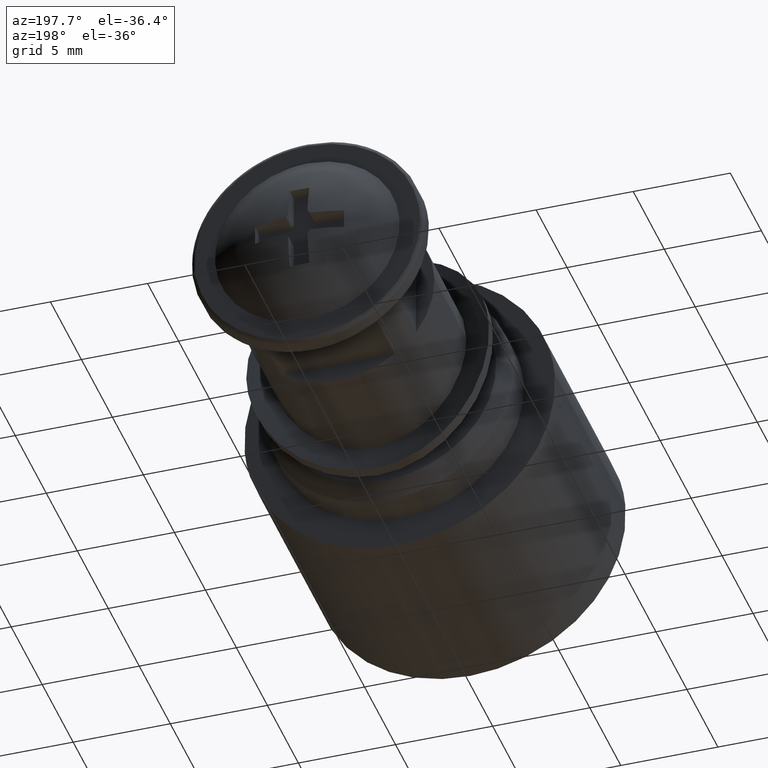
[diagram: clean part render]
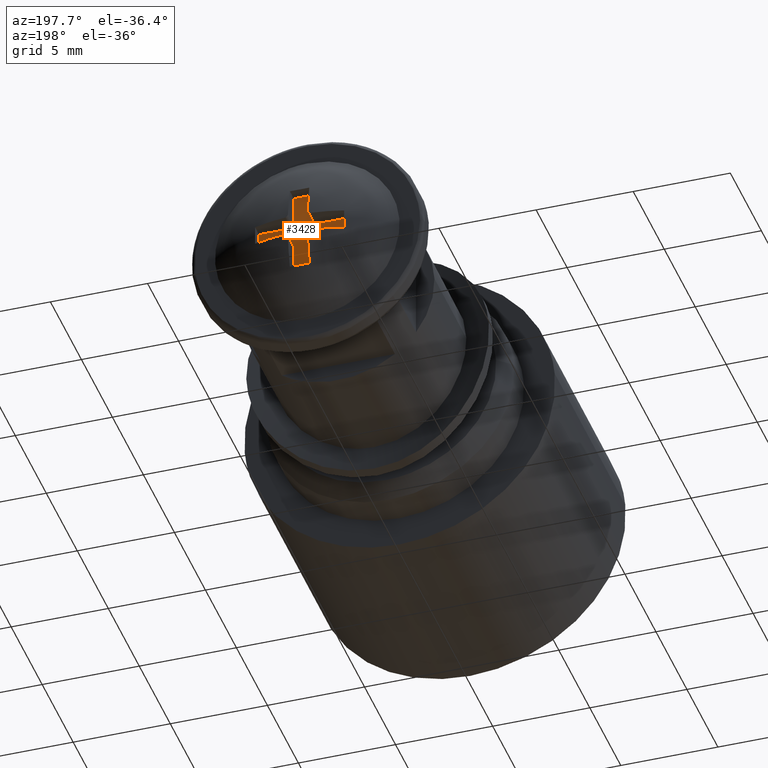
[diagram: same view with one face highlighted and labeled with its STEP entity id]
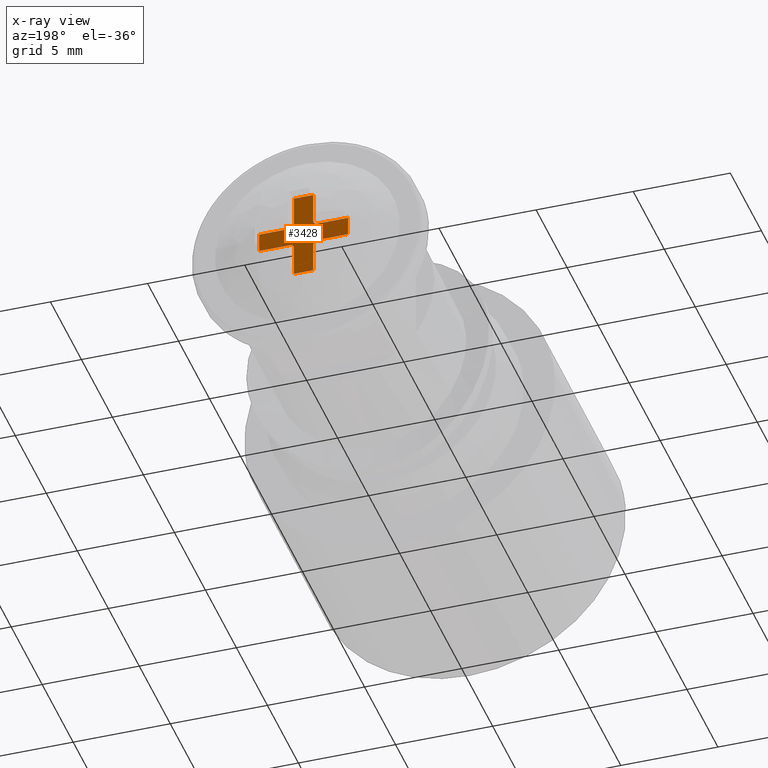
[diagram: x-ray of the same camera — body ghosted, the highlighted face saturated]
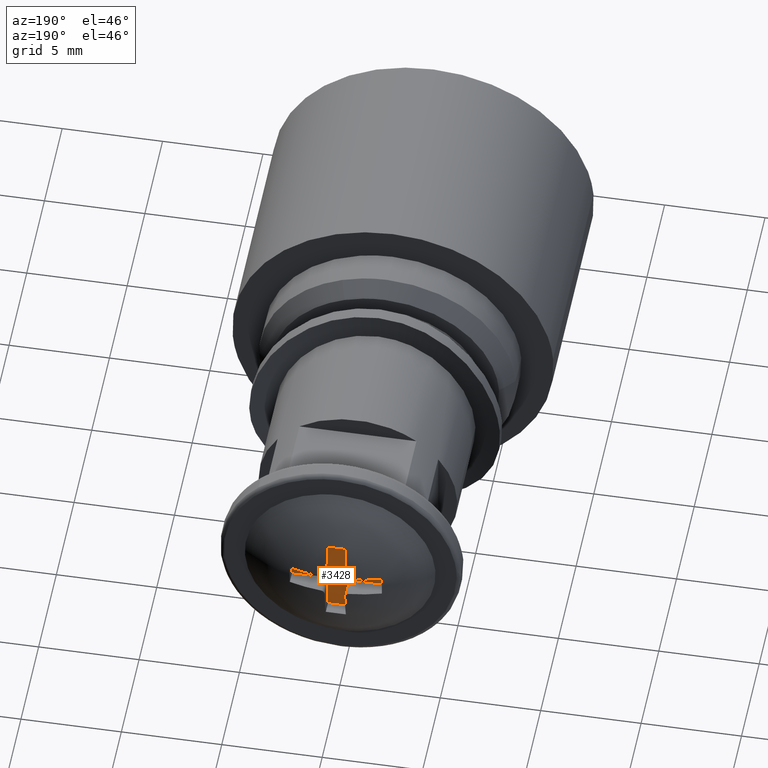
[diagram: same view with one face highlighted and labeled with its STEP entity id]
A machine part, auxiliary view. The second image highlights one B-rep face of the part: STEP entity #3428.
The next image is the same camera in x-ray: the body ghosted, the highlighted face saturated — about 0% of this face is hidden behind the body in this view.
A second angle (auxiliary view) of the same face is appended — the face is thin or edge-on in the first view.
In plain terms, the highlighted face is a freeform B-spline surface patch.
Its self-contained STEP definition (entity closure, byte-faithful):
#3241=CARTESIAN_POINT('',(-2.529770197605020,15.500000974442800,2.529770197604838));
#3242=CARTESIAN_POINT('',(2.529770238732124,15.500000974442800,2.529770197604838));
#3243=CARTESIAN_POINT('',(-2.529770197605020,15.500000974442800,-2.529770238732283));
#3244=CARTESIAN_POINT('',(2.529770238732124,15.500000974442800,-2.529770238732283));
#3245=B_SPLINE_SURFACE_WITH_KNOTS('',1,1,((#3241,#3243),(#3242,#3244)),.UNSPECIFIED.,.F.,.F.,.U.,(2,2),(2,2),(0.0,5.059540436337144),(0.0,5.059540436337121),.UNSPECIFIED.);
#3246=CARTESIAN_POINT('',(0.500000023748697,15.500000974442800,0.700000033248202));
#3247=VERTEX_POINT('',#3246);
#3248=CARTESIAN_POINT('',(0.500000023748707,15.500000974442800,2.291615465318225));
#3249=VERTEX_POINT('',#3248);
#3250=CARTESIAN_POINT('',(0.500000023748697,15.500000974442800,0.700000033248202));
#3251=CARTESIAN_POINT('',(0.500000023748707,15.500000974442800,2.291615465318225));
#3252=QUASI_UNIFORM_CURVE('',1,(#3250,#3251),.UNSPECIFIED.,.F.,.U.);
#3253=EDGE_CURVE('',#3247,#3249,#3252,.T.);
#3254=ORIENTED_EDGE('',*,*,#3253,.F.);
#3255=CARTESIAN_POINT('',(0.700000033248188,15.500000974442800,0.500000023748711));
#3256=VERTEX_POINT('',#3255);
#3257=CARTESIAN_POINT('',(0.500000023748697,15.500000974442800,0.700000033248202));
#3258=CARTESIAN_POINT('',(0.500000023748697,15.500000974442800,0.500000023748711));
#3259=CARTESIAN_POINT('',(0.700000033248188,15.500000974442800,0.500000023748711));
#3267=(BOUNDED_CURVE()B_SPLINE_CURVE(2,(#3257,#3258,#3259),.UNSPECIFIED.,.F.,.U.)CURVE()GEOMETRIC_REPRESENTATION_ITEM()QUASI_UNIFORM_CURVE()RATIONAL_B_SPLINE_CURVE((1.0,0.707106781186548,1.0))REPRESENTATION_ITEM(''));
#3268=EDGE_CURVE('',#3247,#3256,#3267,.T.);
#3269=ORIENTED_EDGE('',*,*,#3268,.T.);
#3270=CARTESIAN_POINT('',(2.291615465318155,15.500000974442800,0.500000023748699));
#3271=VERTEX_POINT('',#3270);
#3272=CARTESIAN_POINT('',(2.291615465318155,15.500000974442800,0.500000023748699));
#3273=CARTESIAN_POINT('',(0.700000033248188,15.500000974442800,0.500000023748711));
#3274=QUASI_UNIFORM_CURVE('',1,(#3272,#3273),.UNSPECIFIED.,.F.,.U.);
#3275=EDGE_CURVE('',#3271,#3256,#3274,.T.);
#3276=ORIENTED_EDGE('',*,*,#3275,.F.);
#3277=CARTESIAN_POINT('',(2.291615465318700,15.500000974442800,-0.500000023748740));
#3278=VERTEX_POINT('',#3277);
#3279=CARTESIAN_POINT('',(2.291615465318700,15.500000974442800,-0.500000023748740));
#3280=CARTESIAN_POINT('',(2.308389470170704,15.500000974442804,-6.179952E-015));
#3281=CARTESIAN_POINT('',(2.291615465318154,15.500000974442800,0.500000023748696));
#3289=(BOUNDED_CURVE()B_SPLINE_CURVE(2,(#3279,#3280,#3281),.UNSPECIFIED.,.F.,.U.)CURVE()GEOMETRIC_REPRESENTATION_ITEM()QUASI_UNIFORM_CURVE()RATIONAL_B_SPLINE_CURVE((1.0,0.999437740135854,1.0))REPRESENTATION_ITEM(''));
#3290=EDGE_CURVE('',#3278,#3271,#3289,.T.);
#3291=ORIENTED_EDGE('',*,*,#3290,.F.);
#3292=CARTESIAN_POINT('',(0.700000033248188,15.500000974442800,-0.500000023748740));
#3293=VERTEX_POINT('',#3292);
#3294=CARTESIAN_POINT('',(0.700000033248188,15.500000974442800,-0.500000023748740));
#3295=CARTESIAN_POINT('',(2.291615465318700,15.500000974442800,-0.500000023748740));
#3296=QUASI_UNIFORM_CURVE('',1,(#3294,#3295),.UNSPECIFIED.,.F.,.U.);
#3297=EDGE_CURVE('',#3293,#3278,#3296,.T.);
#3298=ORIENTED_EDGE('',*,*,#3297,.F.);
#3299=CARTESIAN_POINT('',(0.500000023748697,15.500000974442800,-0.700000033248273));
#3300=VERTEX_POINT('',#3299);
#3301=CARTESIAN_POINT('',(0.700000033248188,15.500000974442800,-0.500000023748740));
#3302=CARTESIAN_POINT('',(0.617157316838739,15.500000974442795,-0.500000023748740));
#3303=CARTESIAN_POINT('',(0.558578670293709,15.500000974442800,-0.558578670293782));
#3304=CARTESIAN_POINT('',(0.500000023748680,15.500000974442795,-0.617157316838824));
#3305=CARTESIAN_POINT('',(0.500000023748697,15.500000974442800,-0.700000033248273));
#3313=(BOUNDED_CURVE()B_SPLINE_CURVE(2,(#3301,#3302,#3303,#3304,#3305),.UNSPECIFIED.,.F.,.U.)B_SPLINE_CURVE_WITH_KNOTS((3,2,3),(0.0,0.500000000000000,1.0),.UNSPECIFIED.)CURVE()GEOMETRIC_REPRESENTATION_ITEM()RATIONAL_B_SPLINE_CURVE((1.0,0.923879532511266,1.0,0.923879532511266,1.0))REPRESENTATION_ITEM(''));
#3314=EDGE_CURVE('',#3293,#3300,#3313,.T.);
#3315=ORIENTED_EDGE('',*,*,#3314,.T.);
#3316=CARTESIAN_POINT('',(0.500000023748697,15.500000974442800,-2.291615465318336));
#3317=VERTEX_POINT('',#3316);
#3318=CARTESIAN_POINT('',(0.500000023748697,15.500000974442800,-2.291615465318336));
#3319=CARTESIAN_POINT('',(0.500000023748697,15.500000974442800,-0.700000033248273));
#3320=QUASI_UNIFORM_CURVE('',1,(#3318,#3319),.UNSPECIFIED.,.F.,.U.);
#3321=EDGE_CURVE('',#3317,#3300,#3320,.T.);
#3322=ORIENTED_EDGE('',*,*,#3321,.F.);
#3323=CARTESIAN_POINT('',(-0.500000023748811,15.500000974442800,-2.291615465318800));
#3324=VERTEX_POINT('',#3323);
#3325=CARTESIAN_POINT('',(-0.500000023748811,15.500000974442800,-2.291615465318800));
#3326=CARTESIAN_POINT('',(-5.139118E-014,15.500000974442800,-2.308389470170885));
#3327=CARTESIAN_POINT('',(0.500000023748690,15.500000974442800,-2.291615465318335));
#3335=(BOUNDED_CURVE()B_SPLINE_CURVE(2,(#3325,#3326,#3327),.UNSPECIFIED.,.F.,.U.)CURVE()GEOMETRIC_REPRESENTATION_ITEM()QUASI_UNIFORM_CURVE()RATIONAL_B_SPLINE_CURVE((1.0,0.999437740135854,1.0))REPRESENTATION_ITEM(''));
#3336=EDGE_CURVE('',#3324,#3317,#3335,.T.);
#3337=ORIENTED_EDGE('',*,*,#3336,.F.);
#3338=CARTESIAN_POINT('',(-0.500000023748812,15.500000974442800,-0.700000033248230));
#3339=VERTEX_POINT('',#3338);
#3340=CARTESIAN_POINT('',(-0.500000023748812,15.500000974442800,-0.700000033248230));
#3341=CARTESIAN_POINT('',(-0.500000023748811,15.500000974442800,-2.291615465318800));
#3342=QUASI_UNIFORM_CURVE('',1,(#3340,#3341),.UNSPECIFIED.,.F.,.U.);
#3343=EDGE_CURVE('',#3339,#3324,#3342,.T.);
#3344=ORIENTED_EDGE('',*,*,#3343,.F.);
#3345=CARTESIAN_POINT('',(-0.700000033248301,15.500000974442800,-0.500000023748740));
#3346=VERTEX_POINT('',#3345);
#3347=CARTESIAN_POINT('',(-0.500000023748811,15.500000974442800,-0.700000033248230));
#3348=CARTESIAN_POINT('',(-0.500000023748811,15.500000974442804,-0.500000023748741));
#3349=CARTESIAN_POINT('',(-0.700000033248301,15.500000974442800,-0.500000023748741));
#3357=(BOUNDED_CURVE()B_SPLINE_CURVE(2,(#3347,#3348,#3349),.UNSPECIFIED.,.F.,.U.)CURVE()GEOMETRIC_REPRESENTATION_ITEM()QUASI_UNIFORM_CURVE()RATIONAL_B_SPLINE_CURVE((1.0,0.707106781186547,1.0))REPRESENTATION_ITEM(''));
#3358=EDGE_CURVE('',#3339,#3346,#3357,.T.);
#3359=ORIENTED_EDGE('',*,*,#3358,.T.);
#3360=CARTESIAN_POINT('',(-2.291615465318270,15.500000974442800,-0.500000023748651));
#3361=VERTEX_POINT('',#3360);
#3362=CARTESIAN_POINT('',(-2.291615465318270,15.500000974442800,-0.500000023748651));
#3363=CARTESIAN_POINT('',(-0.700000033248301,15.500000974442800,-0.500000023748740));
#3364=QUASI_UNIFORM_CURVE('',1,(#3362,#3363),.UNSPECIFIED.,.F.,.U.);
#3365=EDGE_CURVE('',#3361,#3346,#3364,.T.);
#3366=ORIENTED_EDGE('',*,*,#3365,.F.);
#3367=CARTESIAN_POINT('',(-2.291615465318815,15.500000974442800,0.500000023748711));
#3368=VERTEX_POINT('',#3367);
#3369=CARTESIAN_POINT('',(-2.291615465318815,15.500000974442800,0.500000023748711));
#3370=CARTESIAN_POINT('',(-2.308389470170803,15.500000974442797,2.818926E-014));
#3371=CARTESIAN_POINT('',(-2.291615465318255,15.500000974442800,-0.500000023748658));
#3379=(BOUNDED_CURVE()B_SPLINE_CURVE(2,(#3369,#3370,#3371),.UNSPECIFIED.,.F.,.U.)CURVE()GEOMETRIC_REPRESENTATION_ITEM()QUASI_UNIFORM_CURVE()RATIONAL_B_SPLINE_CURVE((1.0,0.999437740135854,1.0))REPRESENTATION_ITEM(''));
#3380=EDGE_CURVE('',#3368,#3361,#3379,.T.);
#3381=ORIENTED_EDGE('',*,*,#3380,.F.);
#3382=CARTESIAN_POINT('',(-0.700000033248341,15.500000974442800,0.500000023748711));
#3383=VERTEX_POINT('',#3382);
#3384=CARTESIAN_POINT('',(-0.700000033248341,15.500000974442800,0.500000023748711));
#3385=CARTESIAN_POINT('',(-2.291615465318815,15.500000974442800,0.500000023748711));
#3386=QUASI_UNIFORM_CURVE('',1,(#3384,#3385),.UNSPECIFIED.,.F.,.U.);
#3387=EDGE_CURVE('',#3383,#3368,#3386,.T.);
#3388=ORIENTED_EDGE('',*,*,#3387,.F.);
#3389=CARTESIAN_POINT('',(-0.500000023748811,15.500000974442800,0.700000033248259));
#3390=VERTEX_POINT('',#3389);
#3391=CARTESIAN_POINT('',(-0.700000033248341,15.500000974442800,0.500000023748711));
#3392=CARTESIAN_POINT('',(-0.617157316838876,15.500000974442806,0.500000023748695));
#3393=CARTESIAN_POINT('',(-0.558578670293831,15.500000974442800,0.558578670293744));
#3394=CARTESIAN_POINT('',(-0.500000023748787,15.500000974442806,0.617157316838794));
#3395=CARTESIAN_POINT('',(-0.500000023748811,15.500000974442800,0.700000033248259));
#3403=(BOUNDED_CURVE()B_SPLINE_CURVE(2,(#3391,#3392,#3393,#3394,#3395),.UNSPECIFIED.,.F.,.U.)B_SPLINE_CURVE_WITH_KNOTS((3,2,3),(0.0,0.500000000000000,1.0),.UNSPECIFIED.)CURVE()GEOMETRIC_REPRESENTATION_ITEM()RATIONAL_B_SPLINE_CURVE((1.0,0.923879532511240,1.0,0.923879532511240,1.0))REPRESENTATION_ITEM(''));
#3404=EDGE_CURVE('',#3383,#3390,#3403,.T.);
#3405=ORIENTED_EDGE('',*,*,#3404,.T.);
#3406=CARTESIAN_POINT('',(-0.500000023748682,15.500000974442800,2.291615465318225));
#3407=VERTEX_POINT('',#3406);
#3408=CARTESIAN_POINT('',(-0.500000023748682,15.500000974442800,2.291615465318225));
#3409=CARTESIAN_POINT('',(-0.500000023748811,15.500000974442800,0.700000033248259));
#3410=QUASI_UNIFORM_CURVE('',1,(#3408,#3409),.UNSPECIFIED.,.F.,.U.);
#3411=EDGE_CURVE('',#3407,#3390,#3410,.T.);
#3412=ORIENTED_EDGE('',*,*,#3411,.F.);
#3413=CARTESIAN_POINT('',(0.500000023748716,15.500000974442800,2.291615465318211));
#3414=CARTESIAN_POINT('',(8.131516E-015,15.500000974442804,2.308389470170763));
#3415=CARTESIAN_POINT('',(-0.500000023748682,15.500000974442800,2.291615465318213));
#3423=(BOUNDED_CURVE()B_SPLINE_CURVE(2,(#3413,#3414,#3415),.UNSPECIFIED.,.F.,.U.)CURVE()GEOMETRIC_REPRESENTATION_ITEM()QUASI_UNIFORM_CURVE()RATIONAL_B_SPLINE_CURVE((1.0,0.999437740135854,1.0))REPRESENTATION_ITEM(''));
#3424=EDGE_CURVE('',#3249,#3407,#3423,.T.);
#3425=ORIENTED_EDGE('',*,*,#3424,.F.);
#3426=EDGE_LOOP('',(#3254,#3269,#3276,#3291,#3298,#3315,#3322,#3337,#3344,#3359,#3366,#3381,#3388,#3405,#3412,#3425));
#3427=FACE_OUTER_BOUND('',#3426,.T.);
#3428=ADVANCED_FACE('',(#3427),#3245,.T.);